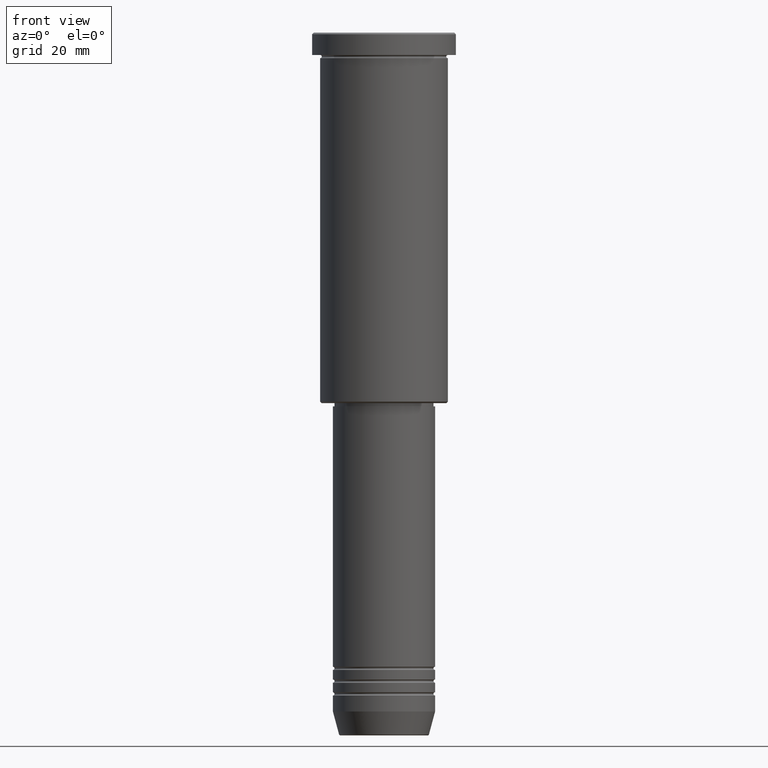
[diagram: clean part render]
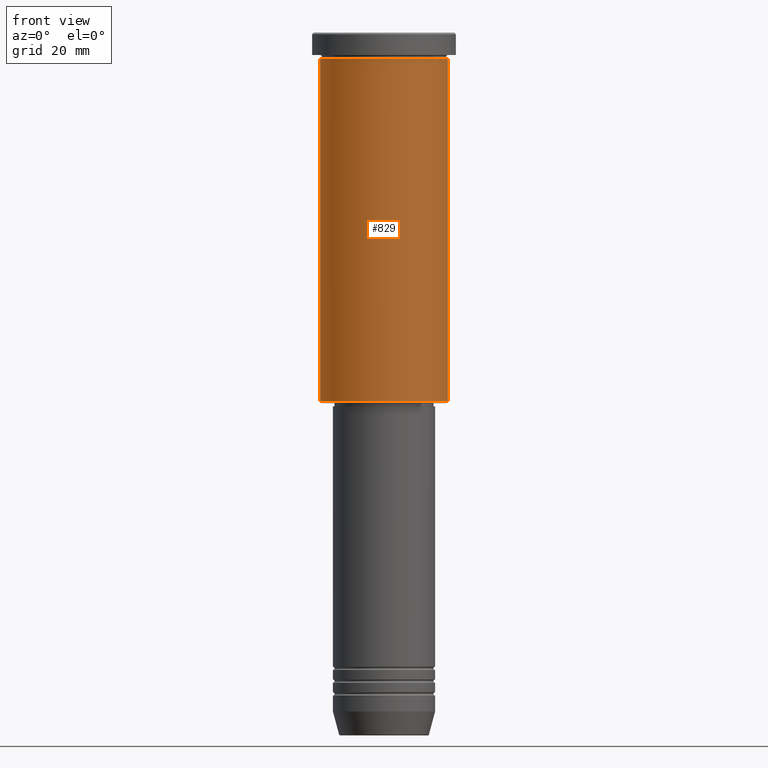
[diagram: same view with one face highlighted and labeled with its STEP entity id]
A machine part, front view. The second image highlights one B-rep face of the part: STEP entity #829.
In plain terms, the highlighted cylindrical surface (partial cylindrical patch) has radius 20 mm, axis along (-0, -0, 1).
Its self-contained STEP definition (entity closure, byte-faithful):
#1 = VERTEX_POINT ( 'NONE', #1114 ) ;
#15 = CARTESIAN_POINT ( 'NONE',  ( -20.00000000000000355, 2.449293598294706907E-15, 0.000000000000000000 ) ) ;
#28 = AXIS2_PLACEMENT_3D ( 'NONE', #386, #1012, #190 ) ;
#65 = CYLINDRICAL_SURFACE ( 'NONE', #1010, 20.00000000000000355 ) ;
#91 = ORIENTED_EDGE ( 'NONE', *, *, #1015, .F. ) ;
#95 = EDGE_CURVE ( 'NONE', #1, #367, #923, .T. ) ;
#163 = CIRCLE ( 'NONE', #180, 20.00000000000000000 ) ;
#166 = CARTESIAN_POINT ( 'NONE',  ( -20.00000000000000000, 2.449293598294706513E-15, -7.999999999999994671 ) ) ;
#180 = AXIS2_PLACEMENT_3D ( 'NONE', #1105, #843, #553 ) ;
#190 = DIRECTION ( 'NONE',  ( -1.000000000000000000, 0.000000000000000000, 0.000000000000000000 ) ) ;
#246 = DIRECTION ( 'NONE',  ( 1.000000000000000000, 0.000000000000000000, 0.000000000000000000 ) ) ;
#269 = ORIENTED_EDGE ( 'NONE', *, *, #957, .T. ) ;
#301 = CARTESIAN_POINT ( 'NONE',  ( 20.00000000000000355, 0.000000000000000000, -115.4999999999999432 ) ) ;
#337 = EDGE_CURVE ( 'NONE', #1048, #358, #1077, .T. ) ;
#341 = CARTESIAN_POINT ( 'NONE',  ( 20.00000000000000000, 0.000000000000000000, -7.999999999999994671 ) ) ;
#348 = DIRECTION ( 'NONE',  ( -0.000000000000000000, -0.000000000000000000, 1.000000000000000000 ) ) ;
#355 = CARTESIAN_POINT ( 'NONE',  ( 0.000000000000000000, 0.000000000000000000, 0.000000000000000000 ) ) ;
#358 = VERTEX_POINT ( 'NONE', #341 ) ;
#367 = VERTEX_POINT ( 'NONE', #166 ) ;
#386 = CARTESIAN_POINT ( 'NONE',  ( 0.000000000000000000, 0.000000000000000000, -115.4999999999999432 ) ) ;
#479 = ORIENTED_EDGE ( 'NONE', *, *, #337, .T. ) ;
#553 = DIRECTION ( 'NONE',  ( 1.000000000000000000, 0.000000000000000000, 0.000000000000000000 ) ) ;
#581 = CIRCLE ( 'NONE', #28, 20.00000000000000355 ) ;
#614 = VECTOR ( 'NONE', #1109, 1000.000000000000000 ) ;
#717 = EDGE_LOOP ( 'NONE', ( #905, #269, #479, #91 ) ) ;
#723 = DIRECTION ( 'NONE',  ( -0.000000000000000000, -0.000000000000000000, 1.000000000000000000 ) ) ;
#829 = ADVANCED_FACE ( 'NONE', ( #963 ), #65, .T. ) ;
#843 = DIRECTION ( 'NONE',  ( -0.000000000000000000, -0.000000000000000000, 1.000000000000000000 ) ) ;
#897 = VECTOR ( 'NONE', #348, 1000.000000000000000 ) ;
#905 = ORIENTED_EDGE ( 'NONE', *, *, #95, .F. ) ;
#923 = LINE ( 'NONE', #15, #614 ) ;
#957 = EDGE_CURVE ( 'NONE', #1, #1048, #581, .T. ) ;
#963 = FACE_OUTER_BOUND ( 'NONE', #717, .T. ) ;
#979 = CARTESIAN_POINT ( 'NONE',  ( 20.00000000000000355, 0.000000000000000000, 0.000000000000000000 ) ) ;
#1010 = AXIS2_PLACEMENT_3D ( 'NONE', #355, #723, #246 ) ;
#1012 = DIRECTION ( 'NONE',  ( -0.000000000000000000, -0.000000000000000000, 1.000000000000000000 ) ) ;
#1015 = EDGE_CURVE ( 'NONE', #367, #358, #163, .T. ) ;
#1048 = VERTEX_POINT ( 'NONE', #301 ) ;
#1077 = LINE ( 'NONE', #979, #897 ) ;
#1105 = CARTESIAN_POINT ( 'NONE',  ( 0.000000000000000000, 0.000000000000000000, -7.999999999999994671 ) ) ;
#1109 = DIRECTION ( 'NONE',  ( -0.000000000000000000, -0.000000000000000000, 1.000000000000000000 ) ) ;
#1114 = CARTESIAN_POINT ( 'NONE',  ( -20.00000000000000355, 2.449293598294706907E-15, -115.4999999999999432 ) ) ;